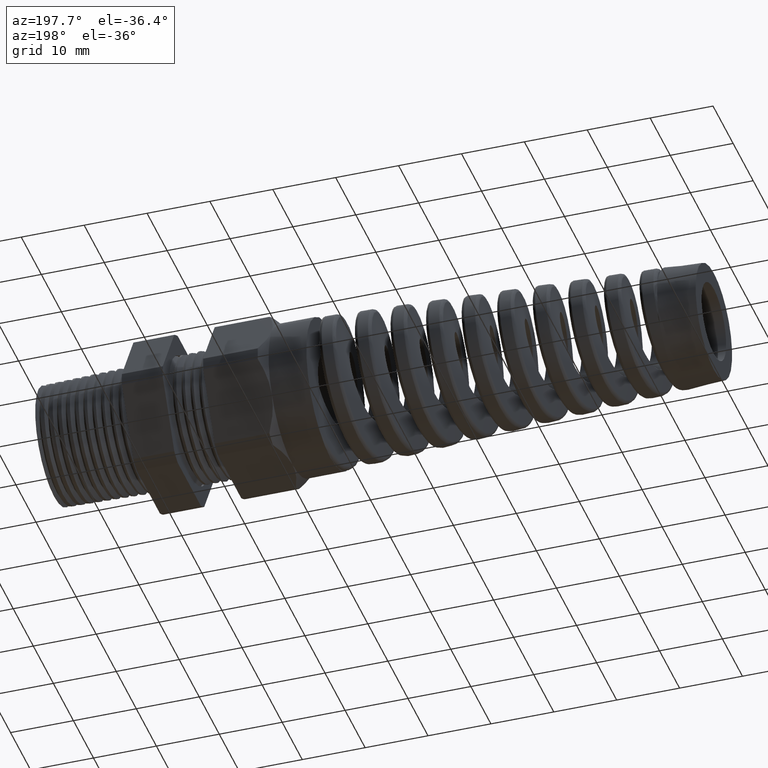
[diagram: clean part render]
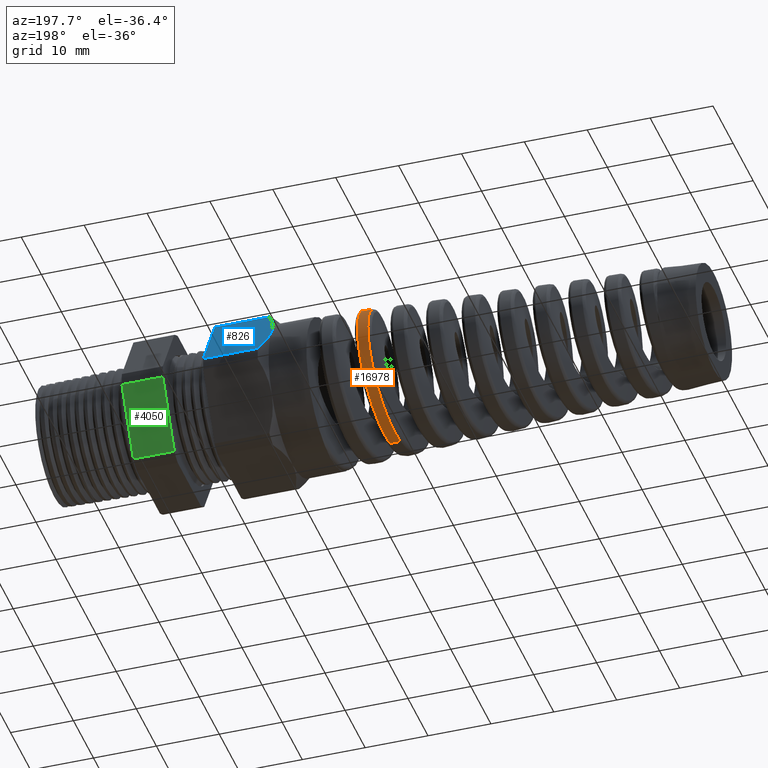
[diagram: same view with three faces highlighted in distinct colors, each labeled with its STEP entity id]
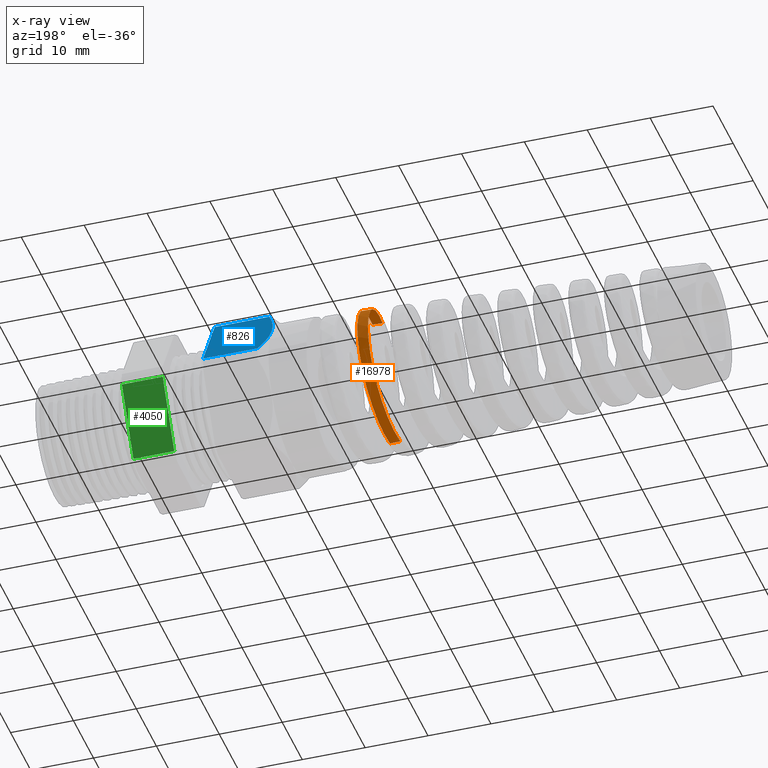
[diagram: x-ray of the same camera — body ghosted, the three highlighted faces saturated]
A machine part, auxiliary view with three faces highlighted in distinct colors.
The next image is the same camera in x-ray (body ghosted, the three faces saturated) — at least one of them is partly hidden behind the body in this view.
Their STEP definitions:

[orange] entity #16978 — the highlighted conical surface has half-angle 2.5 deg.
#14116 = DIRECTION ( 'NONE',  ( 0.9990482215818576900, 0.0000000000000000000, -0.04361938736533631200 ) ) ;
#14117 = VECTOR ( 'NONE', #14116, 39.37007874015748100 ) ;
#14119 = CARTESIAN_POINT ( 'NONE',  ( -1.369999999999999900, 0.0000000000000000000, -0.4699999999999999700 ) ) ;
#14120 = LINE ( 'NONE', #14119, #14117 ) ;
#14131 = CARTESIAN_POINT ( 'NONE',  ( -1.822040881429618700, 5.096541791137408800E-013, -0.4502634688835878100 ) ) ;
#14303 = CARTESIAN_POINT ( 'NONE',  ( -1.761257017529631200, 0.4468046488174056100, 0.07564320165449360500 ) ) ;
#14304 = CARTESIAN_POINT ( 'NONE',  ( -1.757809340060459700, 0.4380420694168157800, 0.1194918324233043800 ) ) ;
#14307 = CARTESIAN_POINT ( 'NONE',  ( -1.755544896219090300, 0.4294275797834336000, 0.1477263735582237100 ) ) ;
#14309 = CARTESIAN_POINT ( 'NONE',  ( -1.752128767299149700, 0.4124741950551973900, 0.1886215747762190800 ) ) ;
#14310 = CARTESIAN_POINT ( 'NONE',  ( -1.750987011449980800, 0.4061462922027455600, 0.2020088122152971800 ) ) ;
#14312 = CARTESIAN_POINT ( 'NONE',  ( -1.748687315151896000, 0.3920991509197268600, 0.2282798259128979200 ) ) ;
#14314 = CARTESIAN_POINT ( 'NONE',  ( -1.747533117465403200, 0.3843950883842104400, 0.2411159806779676100 ) ) ;
#14316 = CARTESIAN_POINT ( 'NONE',  ( -1.744108794239781300, 0.3596998520321175700, 0.2780393331708604400 ) ) ;
#14317 = CARTESIAN_POINT ( 'NONE',  ( -1.741851798874636700, 0.3409990863555979500, 0.3008319111185008300 ) ) ;
#14319 = CARTESIAN_POINT ( 'NONE',  ( -1.738430761906552200, 0.3095927995241541900, 0.3322794945339343500 ) ) ;
#14321 = CARTESIAN_POINT ( 'NONE',  ( -1.737278185216293300, 0.2984955114457807400, 0.3423529360480159200 ) ) ;
#14323 = CARTESIAN_POINT ( 'NONE',  ( -1.734985187286576200, 0.2754928615395048100, 0.3612474127370969300 ) ) ;
#14324 = CARTESIAN_POINT ( 'NONE',  ( -1.733845986557382500, 0.2636068129160392100, 0.3700658774771743400 ) ) ;
#14326 = CARTESIAN_POINT ( 'NONE',  ( -1.730435069461946100, 0.2268259046410669700, 0.3946841146902044800 ) ) ;
#14328 = CARTESIAN_POINT ( 'NONE',  ( -1.728172464612168600, 0.2008187379429952900, 0.4086642074342938200 ) ) ;
#14329 = CARTESIAN_POINT ( 'NONE',  ( -1.724733432000420400, 0.1595093044055275200, 0.4258643213729566000 ) ) ;
#14331 = CARTESIAN_POINT ( 'NONE',  ( -1.723587548133073100, 0.1454558669659717400, 0.4309154502506916700 ) ) ;
#14333 = CARTESIAN_POINT ( 'NONE',  ( -1.721313834762431700, 0.1171556922323973300, 0.4395569805197753200 ) ) ;
#14334 = CARTESIAN_POINT ( 'NONE',  ( -1.719049091902859600, 0.08855293848782874700, 0.4467841778985683900 ) ) ;
#14336 = CARTESIAN_POINT ( 'NONE',  ( -1.716779821678874100, 0.05935345605739934800, 0.4512138873614337000 ) ) ;
#14338 = CARTESIAN_POINT ( 'NONE',  ( -1.714498253804540800, 0.02985122258853168500, 0.4542205866170148100 ) ) ;
#14340 = CARTESIAN_POINT ( 'NONE',  ( -1.713345062118319900, 0.01486718116825785900, 0.4550092308449323300 ) ) ;
#14341 = CARTESIAN_POINT ( 'NONE',  ( -1.712202162727100900, -3.123575576925645000E-016, 0.4550591309100025500 ) ) ;
#14344 = B_SPLINE_CURVE_WITH_KNOTS ( 'NONE', 3,
 ( #14341, #14340, #14338, #14336, #14334, #14333, #14331, #14329, #14328, #14326, #14324, #14323, #14321, #14319, #14317, #14316, #14314, #14312, #14310, #14309, #14307, #14304, #14303, #14453, #14451, #14450, #14448, #14446, #14444, #14443, #14441, #14439, #14437, #14436, #14434, #14432, #14430, #14429, #14427, #14425, #14423, #14422, #14420, #14418, #14416, #14415, #14413, #14411, #14409, #14408, #14406 ),
 .UNSPECIFIED., .F., .F.,
 ( 4, 2, 1, 2, 2, 2, 2, 2, 2, 2, 2, 2, 2, 2, 2, 2, 2, 2, 2, 2, 2, 2, 2, 2, 2, 4 ),
 ( 0.08905529058756787900, 0.09019516613580699800, 0.09133504168404613100, 0.09247491723228525000, 0.09361479278052438300, 0.09589454387700263600, 0.09703441942524175500, 0.09817429497348087500, 0.1004540460699591300, 0.1015939216181982500, 0.1027337971664373800, 0.1050135482629156500, 0.1061534238111547700, 0.1072932993593939000, 0.1084331749076330300, 0.1095730504558721500, 0.1118528015523504200, 0.1129926771005895500, 0.1141325526488286700, 0.1164123037453069400, 0.1175521792935460600, 0.1186920548417851900, 0.1209718059382634500, 0.1232515570347416900, 0.1243914325829808300, 0.1255313081312199600 ),
 .UNSPECIFIED. ) ;
#14406 = CARTESIAN_POINT ( 'NONE',  ( -1.822040881429618700, 5.096541791137408800E-013, -0.4502634688835878100 ) ) ;
#14408 = CARTESIAN_POINT ( 'NONE',  ( -1.820888725403704300, 0.01482660269356085900, -0.4503137731020401800 ) ) ;
#14409 = CARTESIAN_POINT ( 'NONE',  ( -1.819723694093071400, 0.02981613453249858800, -0.4496224490667018500 ) ) ;
#14411 = CARTESIAN_POINT ( 'NONE',  ( -1.817413255509757300, 0.05941472726539403400, -0.4467774735191904500 ) ) ;
#14413 = CARTESIAN_POINT ( 'NONE',  ( -1.816266353222032200, 0.07404810415716121800, -0.4446332183724990300 ) ) ;
#14415 = CARTESIAN_POINT ( 'NONE',  ( -1.812834842442627000, 0.1174612847230464800, -0.4360874402533395600 ) ) ;
#14416 = CARTESIAN_POINT ( 'NONE',  ( -1.810558030640458900, 0.1457588041742681800, -0.4275936056121821800 ) ) ;
#14418 = CARTESIAN_POINT ( 'NONE',  ( -1.805925301917044300, 0.2010067982122463200, -0.4047969618383501200 ) ) ;
#14420 = CARTESIAN_POINT ( 'NONE',  ( -1.803638982228812100, 0.2271129035747718500, -0.3908333749850261800 ) ) ;
#14422 = CARTESIAN_POINT ( 'NONE',  ( -1.800207463913810100, 0.2639110067806945700, -0.3662853167088415100 ) ) ;
#14423 = CARTESIAN_POINT ( 'NONE',  ( -1.799062991647800000, 0.2757908807476774900, -0.3574934355952843500 ) ) ;
#14425 = CARTESIAN_POINT ( 'NONE',  ( -1.796763152266821500, 0.2987612584358542200, -0.3386657838725126200 ) ) ;
#14427 = CARTESIAN_POINT ( 'NONE',  ( -1.795602937065781800, 0.3098877725287075300, -0.3285846483813437100 ) ) ;
#14429 = CARTESIAN_POINT ( 'NONE',  ( -1.792158402279606900, 0.3413665899180348100, -0.2970923128867416500 ) ) ;
#14430 = CARTESIAN_POINT ( 'NONE',  ( -1.789888290174476800, 0.3600613127164527500, -0.2742876985444238100 ) ) ;
#14432 = CARTESIAN_POINT ( 'NONE',  ( -1.786453181611919800, 0.3847043150189813400, -0.2374027528945953900 ) ) ;
#14434 = CARTESIAN_POINT ( 'NONE',  ( -1.785300397845111000, 0.3923658138245882400, -0.2246248804979578100 ) ) ;
#14436 = CARTESIAN_POINT ( 'NONE',  ( -1.782987537946890700, 0.4064278728574680100, -0.1982799128091515800 ) ) ;
#14437 = CARTESIAN_POINT ( 'NONE',  ( -1.781840745804035700, 0.4127518020378896400, -0.1848646211026617200 ) ) ;
#14439 = CARTESIAN_POINT ( 'NONE',  ( -1.778415126010419700, 0.4296708817530234800, -0.1439149616349511600 ) ) ;
#14441 = CARTESIAN_POINT ( 'NONE',  ( -1.776149242625625100, 0.4382325317524674000, -0.1156835323093201300 ) ) ;
#14443 = CARTESIAN_POINT ( 'NONE',  ( -1.772702656988917500, 0.4469127987053060400, -0.07191572469992192600 ) ) ;
#14444 = CARTESIAN_POINT ( 'NONE',  ( -1.771545000956759900, 0.4490985224472414700, -0.05707590644910308400 ) ) ;
#14446 = CARTESIAN_POINT ( 'NONE',  ( -1.769253396093740000, 0.4519707447381270900, -0.02757063722723878900 ) ) ;
#14448 = CARTESIAN_POINT ( 'NONE',  ( -1.768113006146149400, 0.4526763912958216000, -0.01282363951911586600 ) ) ;
#14450 = CARTESIAN_POINT ( 'NONE',  ( -1.765833373785036900, 0.4526510390288336900, 0.01665853217129863900 ) ) ;
#14451 = CARTESIAN_POINT ( 'NONE',  ( -1.764694205077702600, 0.4519200225044957000, 0.03139371172882200100 ) ) ;
#14453 = CARTESIAN_POINT ( 'NONE',  ( -1.762408945642773400, 0.4490041543076420100, 0.06085147811858860500 ) ) ;
#14483 = DIRECTION ( 'NONE',  ( 0.0000000000000000000, 0.0000000000000000000, -1.000000000000000000 ) ) ;
#14485 = DIRECTION ( 'NONE',  ( 1.000000000000000000, 0.0000000000000000000, 0.0000000000000000000 ) ) ;
#14486 = AXIS2_PLACEMENT_3D ( 'NONE', #14492, #14485, #14483 ) ;
#14487 = CONICAL_SURFACE ( 'NONE', #14486, 0.4699999999999999700, 0.04363323129985854900 ) ;
#14492 = CARTESIAN_POINT ( 'NONE',  ( -1.369999999999999900, 0.0000000000000000000, 0.0000000000000000000 ) ) ;
#14494 = FACE_OUTER_BOUND ( 'NONE', #16935, .T. ) ;
#14520 = CARTESIAN_POINT ( 'NONE',  ( -1.792820941406120500, 0.1988492649791344900, 0.4056677219928064300 ) ) ;
#14522 = CARTESIAN_POINT ( 'NONE',  ( -1.795123748930672400, 0.2249751896484063200, 0.3916665763240070300 ) ) ;
#14524 = CARTESIAN_POINT ( 'NONE',  ( -1.796277561251411700, 0.2377074905555336100, 0.3840090508662502000 ) ) ;
#14525 = CARTESIAN_POINT ( 'NONE',  ( -1.799710113977904800, 0.2743710448449361300, 0.3594471000227311100 ) ) ;
#14527 = CARTESIAN_POINT ( 'NONE',  ( -1.801978560725075600, 0.2970170370024053900, 0.3408460617272124300 ) ) ;
#14529 = CARTESIAN_POINT ( 'NONE',  ( -1.805412118669837800, 0.3282728183314786400, 0.3095893740890358600 ) ) ;
#14531 = CARTESIAN_POINT ( 'NONE',  ( -1.806568844695134500, 0.3382864687117815800, 0.2985411728689125700 ) ) ;
#14532 = CARTESIAN_POINT ( 'NONE',  ( -1.808866668307090900, 0.3570379957348783200, 0.2756772849512071900 ) ) ;
#14534 = CARTESIAN_POINT ( 'NONE',  ( -1.810008619419166900, 0.3657909476262681300, 0.2638607620761887500 ) ) ;
#14536 = CARTESIAN_POINT ( 'NONE',  ( -1.813431109076586200, 0.3902261942890463700, 0.2272866995524978600 ) ) ;
#14538 = CARTESIAN_POINT ( 'NONE',  ( -1.815708743723587300, 0.4041024054702431200, 0.2014155119944505400 ) ) ;
#14539 = CARTESIAN_POINT ( 'NONE',  ( -1.819176657457186800, 0.4211589840344792700, 0.1602969573176711800 ) ) ;
#14541 = CARTESIAN_POINT ( 'NONE',  ( -1.820328692264962200, 0.4261506043476230300, 0.1463430287951748800 ) ) ;
#14543 = CARTESIAN_POINT ( 'NONE',  ( -1.822616448596078700, 0.4346919190309779200, 0.1182099850386352200 ) ) ;
#14545 = CARTESIAN_POINT ( 'NONE',  ( -1.823755601207184300, 0.4382585041826371800, 0.1039904201452412400 ) ) ;
#14546 = CARTESIAN_POINT ( 'NONE',  ( -1.826036772781427100, 0.4439960151253966600, 0.07524889754895963700 ) ) ;
#14547 = CARTESIAN_POINT ( 'NONE',  ( -1.827178774543248600, 0.4461669766969741400, 0.06072694622732851400 ) ) ;
#14548 = CARTESIAN_POINT ( 'NONE',  ( -1.829477377452833200, 0.4490857182916444000, 0.03137562240415629100 ) ) ;
#14549 = CARTESIAN_POINT ( 'NONE',  ( -1.830639824345830400, 0.4498288975311160500, 0.01647120109646450400 ) ) ;
#14550 = CARTESIAN_POINT ( 'NONE',  ( -1.834097027433388500, 0.4498456820445435600, -0.02783339042555219000 ) ) ;
#14551 = CARTESIAN_POINT ( 'NONE',  ( -1.836375001192944300, 0.4469753592167554100, -0.05700868907232146300 ) ) ;
#14552 = CARTESIAN_POINT ( 'NONE',  ( -1.840954720582554700, 0.4355620675289818000, -0.1146423709829998100 ) ) ;
#14553 = CARTESIAN_POINT ( 'NONE',  ( -1.843278971106104400, 0.4268766112418419000, -0.1433266641084317800 ) ) ;
#14554 = CARTESIAN_POINT ( 'NONE',  ( -1.847865248548406600, 0.4043941294649920900, -0.1976149052713792000 ) ) ;
#14556 = CARTESIAN_POINT ( 'NONE',  ( -1.850146549094456600, 0.3905934319534072300, -0.2234782159987053200 ) ) ;
#14557 = CARTESIAN_POINT ( 'NONE',  ( -1.853609845877750600, 0.3659932704884068000, -0.2603167648319740200 ) ) ;
#14558 = CARTESIAN_POINT ( 'NONE',  ( -1.854774442103824100, 0.3571010227573938000, -0.2723024884610597000 ) ) ;
#14559 = CARTESIAN_POINT ( 'NONE',  ( -1.857078012342326900, 0.3383744947954029900, -0.2950969554316275600 ) ) ;
#14560 = CARTESIAN_POINT ( 'NONE',  ( -1.859367802053903500, 0.3186331085548613200, -0.3168412661041222200 ) ) ;
#14561 = CARTESIAN_POINT ( 'NONE',  ( -1.861655404639487300, 0.2969017065881555100, -0.3365235379148861000 ) ) ;
#14562 = CARTESIAN_POINT ( 'NONE',  ( -1.863953750661532500, 0.2741662905825727500, -0.3551641187009429400 ) ) ;
#14563 = CARTESIAN_POINT ( 'NONE',  ( -1.865111706588957800, 0.2622602126448867500, -0.3639877056318873700 ) ) ;
#14564 = CARTESIAN_POINT ( 'NONE',  ( -1.868596673904356000, 0.2252163978269885700, -0.3886762126276427400 ) ) ;
#14565 = CARTESIAN_POINT ( 'NONE',  ( -1.870886266353911600, 0.1992898319177533200, -0.4024484950429665400 ) ) ;
#14566 = CARTESIAN_POINT ( 'NONE',  ( -1.874327267238889100, 0.1586217742556728600, -0.4192144358540829700 ) ) ;
#14567 = CARTESIAN_POINT ( 'NONE',  ( -1.875475889714674200, 0.1447672388968584400, -0.4241495367914016000 ) ) ;
#14569 = CARTESIAN_POINT ( 'NONE',  ( -1.877789337671541500, 0.1164463687440285000, -0.4326778800908756000 ) ) ;
#14570 = CARTESIAN_POINT ( 'NONE',  ( -1.878954340285434700, 0.1019756798815294600, -0.4362609472457341100 ) ) ;
#14571 = CARTESIAN_POINT ( 'NONE',  ( -1.882414686143368800, 0.05860567167067742800, -0.4447513418945646700 ) ) ;
#14572 = CARTESIAN_POINT ( 'NONE',  ( -1.884702352653078800, 0.02943138902145532200, -0.4475276099659683500 ) ) ;
#14573 = CARTESIAN_POINT ( 'NONE',  ( -1.887011458288743200, -4.772883062602677700E-013, -0.4474267922366084200 ) ) ;
#14574 = B_SPLINE_CURVE_WITH_KNOTS ( 'NONE', 3,
 ( #14573, #14572, #14571, #14570, #14569, #14567, #14566, #14565, #14564, #14563, #14562, #14561, #14560, #14559, #14558, #14557, #14556, #14554, #14553, #14552, #14551, #14550, #14549, #14548, #14547, #14546, #14545, #14543, #14541, #14539, #14538, #14536, #14534, #14532, #14531, #14529, #14527, #14525, #14524, #14522, #14520, #14614, #14613, #14612, #14611, #14610, #14609, #14608, #14607 ),
 .UNSPECIFIED., .F., .F.,
 ( 4, 2, 2, 2, 2, 2, 1, 2, 2, 2, 2, 2, 2, 2, 2, 2, 2, 2, 2, 2, 2, 2, 2, 2, 4 ),
 ( 0.5195365549092706400, 0.5218117847355976400, 0.5229493996487610800, 0.5240870145619245200, 0.5263622443882515200, 0.5274998593014149600, 0.5286374742145785200, 0.5297750891277419600, 0.5309127040409054000, 0.5331879338672324000, 0.5354631636935594000, 0.5377383935198862800, 0.5388760084330498400, 0.5400136233462132800, 0.5411512382593767200, 0.5422888531725402700, 0.5445640829988671600, 0.5457016979120307100, 0.5468393128251941600, 0.5491145426515211500, 0.5502521575646846000, 0.5513897724778480400, 0.5536650023041750400, 0.5548026172173385900, 0.5559402321305020300 ),
 .UNSPECIFIED. ) ;
#14607 = CARTESIAN_POINT ( 'NONE',  ( -1.776839634250644100, -4.708361543883943300E-013, 0.4522369979560625400 ) ) ;
#14608 = CARTESIAN_POINT ( 'NONE',  ( -1.777976215575911300, 0.01465189297870726600, 0.4521873737437242500 ) ) ;
#14609 = CARTESIAN_POINT ( 'NONE',  ( -1.779113741141150400, 0.02930254499337526700, 0.4514273505536940400 ) ) ;
#14610 = CARTESIAN_POINT ( 'NONE',  ( -1.781400487450781600, 0.05860056776003967600, 0.4484651504670913400 ) ) ;
#14611 = CARTESIAN_POINT ( 'NONE',  ( -1.782556004923651100, 0.07332730057045269700, 0.4462451635734186500 ) ) ;
#14612 = CARTESIAN_POINT ( 'NONE',  ( -1.786001747498244400, 0.1168489539241211600, 0.4374688909823396000 ) ) ;
#14613 = CARTESIAN_POINT ( 'NONE',  ( -1.788263754439378000, 0.1448944763171203500, 0.4288754835031409800 ) ) ;
#14614 = CARTESIAN_POINT ( 'NONE',  ( -1.791678974188714000, 0.1855396949191940000, 0.4119745503983631200 ) ) ;
#14658 = CARTESIAN_POINT ( 'NONE',  ( -1.776839634250644100, -4.708361543883943300E-013, 0.4522369979560625400 ) ) ;
#14659 = CARTESIAN_POINT ( 'NONE',  ( -1.712202162727100900, -3.123575576925645000E-016, 0.4550591309100025500 ) ) ;
#14664 = CARTESIAN_POINT ( 'NONE',  ( -1.887011458288743200, -4.772883062602677700E-013, -0.4474267922366084200 ) ) ;
#14774 = DIRECTION ( 'NONE',  ( 0.9990482215818576900, 5.341834311772761800E-018, 0.04361938736533631200 ) ) ;
#14775 = VECTOR ( 'NONE', #14774, 39.37007874015748100 ) ;
#14776 = CARTESIAN_POINT ( 'NONE',  ( -1.369999999999999900, 5.755839955992559700E-017, 0.4699999999999999700 ) ) ;
#14777 = LINE ( 'NONE', #14776, #14775 ) ;
#16935 = EDGE_LOOP ( 'NONE', ( #17017, #17211, #17231, #16944 ) ) ;
#16937 = VERTEX_POINT ( 'NONE', #14131 ) ;
#16939 = EDGE_CURVE ( 'NONE', #17215, #16937, #14120, .T. ) ;
#16944 = ORIENTED_EDGE ( 'NONE', *, *, #16939, .F. ) ;
#16960 = EDGE_CURVE ( 'NONE', #17226, #16937, #14344, .T. ) ;
#16978 = ADVANCED_FACE ( 'NONE', ( #14494 ), #14487, .T. ) ;
#17017 = ORIENTED_EDGE ( 'NONE', *, *, #17075, .T. ) ;
#17075 = EDGE_CURVE ( 'NONE', #17215, #17227, #14574, .T. ) ;
#17211 = ORIENTED_EDGE ( 'NONE', *, *, #17230, .T. ) ;
#17215 = VERTEX_POINT ( 'NONE', #14664 ) ;
#17226 = VERTEX_POINT ( 'NONE', #14659 ) ;
#17227 = VERTEX_POINT ( 'NONE', #14658 ) ;
#17230 = EDGE_CURVE ( 'NONE', #17227, #17226, #14777, .T. ) ;
#17231 = ORIENTED_EDGE ( 'NONE', *, *, #16960, .T. ) ;

[blue] entity #826 — the highlighted planar face has unit normal (0, 0.866, 0.5).
#811 = ORIENTED_EDGE ( 'NONE', *, *, #827, .T. ) ;
#813 = EDGE_LOOP ( 'NONE', ( #811, #814, #9564, #17493, #17482 ) ) ;
#814 = ORIENTED_EDGE ( 'NONE', *, *, #9571, .T. ) ;
#817 = VERTEX_POINT ( 'NONE', #4372 ) ;
#826 = ADVANCED_FACE ( 'NONE', ( #4359 ), #4358, .T. ) ;
#827 = EDGE_CURVE ( 'NONE', #817, #828, #4353, .T. ) ;
#828 = VERTEX_POINT ( 'NONE', #4412 ) ;
#863 = EDGE_CURVE ( 'NONE', #817, #17494, #4433, .T. ) ;
#864 = EDGE_CURVE ( 'NONE', #17494, #17492, #4429, .T. ) ;
#4350 = DIRECTION ( 'NONE',  ( -1.000000000000000000, 0.0000000000000000000, 0.0000000000000000000 ) ) ;
#4351 = VECTOR ( 'NONE', #4350, 39.37007874015748100 ) ;
#4352 = CARTESIAN_POINT ( 'NONE',  ( 0.2800000000000000300, 0.5202473208008776600, 0.03890520787129518600 ) ) ;
#4353 = LINE ( 'NONE', #4352, #4351 ) ;
#4354 = DIRECTION ( 'NONE',  ( 0.0000000000000000000, -0.4999999999999998900, 0.8660254037844386000 ) ) ;
#4355 = DIRECTION ( 'NONE',  ( 0.0000000000000000000, 0.8660254037844387100, 0.4999999999999999400 ) ) ;
#4356 = CARTESIAN_POINT ( 'NONE',  ( 0.2800000000000000300, 0.2938165587564947600, 0.4310947921287048800 ) ) ;
#4357 = AXIS2_PLACEMENT_3D ( 'NONE', #4356, #4355, #4354 ) ;
#4358 = PLANE ( 'NONE',  #4357 ) ;
#4359 = FACE_OUTER_BOUND ( 'NONE', #813, .T. ) ;
#4372 = CARTESIAN_POINT ( 'NONE',  ( -0.8188188976377951400, 0.5202473208008776600, 0.03890520787129518600 ) ) ;
#4412 = CARTESIAN_POINT ( 'NONE',  ( -1.160819685039369900, 0.5202473208008776600, 0.03890520787129520000 ) ) ;
#4426 = DIRECTION ( 'NONE',  ( -1.000000000000000000, 0.0000000000000000000, 0.0000000000000000000 ) ) ;
#4427 = VECTOR ( 'NONE', #4426, 39.37007874015748100 ) ;
#4428 = CARTESIAN_POINT ( 'NONE',  ( 0.2800000000000000300, 0.2938165587564947600, 0.4310947921287049400 ) ) ;
#4429 = LINE ( 'NONE', #4428, #4427 ) ;
#4430 = DIRECTION ( 'NONE',  ( 0.0000000000000000000, -0.4999999999999998900, 0.8660254037844386000 ) ) ;
#4431 = VECTOR ( 'NONE', #4430, 39.37007874015748100 ) ;
#4432 = CARTESIAN_POINT ( 'NONE',  ( -0.8188188976377951400, 0.5070319397786862100, 0.06179491924311227700 ) ) ;
#4433 = LINE ( 'NONE', #4432, #4431 ) ;
#7588 = VERTEX_POINT ( 'NONE', #11998 ) ;
#9564 = ORIENTED_EDGE ( 'NONE', *, *, #9970, .T. ) ;
#9571 = EDGE_CURVE ( 'NONE', #828, #7588, #12404, .T. ) ;
#9970 = EDGE_CURVE ( 'NONE', #7588, #17492, #12503, .T. ) ;
#11998 = CARTESIAN_POINT ( 'NONE',  ( -1.212519685039370000, 0.4070319397786864000, 0.2350000000000000400 ) ) ;
#12394 = CARTESIAN_POINT ( 'NONE',  ( -1.212519685039370000, 0.4070319397786864000, 0.2350000000000000400 ) ) ;
#12395 = CARTESIAN_POINT ( 'NONE',  ( -1.212519685039370000, 0.4119326305003308000, 0.2265117546779303000 ) ) ;
#12396 = CARTESIAN_POINT ( 'NONE',  ( -1.212209550361684800, 0.4168781440523186000, 0.2179458739363666600 ) ) ;
#12397 = CARTESIAN_POINT ( 'NONE',  ( -1.210977754654246400, 0.4267040029977489100, 0.2009269870148765700 ) ) ;
#12398 = CARTESIAN_POINT ( 'NONE',  ( -1.210060122264466900, 0.4315793332085025600, 0.1924826673861758100 ) ) ;
#12399 = CARTESIAN_POINT ( 'NONE',  ( -1.206456656993286400, 0.4460993342073096800, 0.1673332879302910600 ) ) ;
#12400 = CARTESIAN_POINT ( 'NONE',  ( -1.202919990934572500, 0.4556379823307484800, 0.1508118647449734100 ) ) ;
#12401 = CARTESIAN_POINT ( 'NONE',  ( -1.189376350521849500, 0.4838883643614173000, 0.1018807677346241200 ) ) ;
#12402 = CARTESIAN_POINT ( 'NONE',  ( -1.176453730715106200, 0.5022367785154768800, 0.07010038218147675300 ) ) ;
#12403 = CARTESIAN_POINT ( 'NONE',  ( -1.160819685039369900, 0.5202473208008776600, 0.03890520787129520000 ) ) ;
#12404 = B_SPLINE_CURVE_WITH_KNOTS ( 'NONE', 3,
 ( #12403, #12402, #12401, #12400, #12399, #12398, #12397, #12396, #12395, #12394 ),
 .UNSPECIFIED., .F., .F.,
 ( 4, 2, 2, 2, 4 ),
 ( 2.483251536669718400E-007, 0.002951677829872989100, 0.004427392582232651500, 0.005165249958412478100, 0.005903107334592306400 ),
 .UNSPECIFIED. ) ;
#12496 = CARTESIAN_POINT ( 'NONE',  ( -1.160819685039369900, 0.2938165587564947600, 0.4310947921287049400 ) ) ;
#12497 = CARTESIAN_POINT ( 'NONE',  ( -1.176473094533777800, 0.3118494083116971100, 0.3998609804938486600 ) ) ;
#12498 = CARTESIAN_POINT ( 'NONE',  ( -1.189577968099953600, 0.3304876304616240500, 0.3675786327674193700 ) ) ;
#12499 = CARTESIAN_POINT ( 'NONE',  ( -1.207574016859125800, 0.3682441305491641600, 0.3021824562998214300 ) ) ;
#12500 = CARTESIAN_POINT ( 'NONE',  ( -1.212519685039369600, 0.3874426189162283300, 0.2689296990195457800 ) ) ;
#12501 = CARTESIAN_POINT ( 'NONE',  ( -1.212519685039370000, 0.4070319397786864000, 0.2350000000000000400 ) ) ;
#12503 = B_SPLINE_CURVE_WITH_KNOTS ( 'NONE', 3,
 ( #12501, #12500, #12499, #12498, #12497, #12496 ),
 .UNSPECIFIED., .F., .F.,
 ( 4, 2, 4 ),
 ( 0.005903107334592306400, 0.008852512982428768400, 0.01180191863026523000 ),
 .UNSPECIFIED. ) ;
#15441 = CARTESIAN_POINT ( 'NONE',  ( -0.8188188976377951400, 0.2938165587564947600, 0.4310947921287049400 ) ) ;
#15442 = CARTESIAN_POINT ( 'NONE',  ( -1.160819685039369900, 0.2938165587564947600, 0.4310947921287049400 ) ) ;
#17482 = ORIENTED_EDGE ( 'NONE', *, *, #863, .F. ) ;
#17492 = VERTEX_POINT ( 'NONE', #15442 ) ;
#17493 = ORIENTED_EDGE ( 'NONE', *, *, #864, .F. ) ;
#17494 = VERTEX_POINT ( 'NONE', #15441 ) ;

[green] entity #4050 — the highlighted planar face has unit normal (0, 0.866, -0.5).
#3976 = ORIENTED_EDGE ( 'NONE', *, *, #3977, .F. ) ;
#3977 = EDGE_CURVE ( 'NONE', #7596, #3978, #16196, .T. ) ;
#3978 = VERTEX_POINT ( 'NONE', #16192 ) ;
#4029 = ORIENTED_EDGE ( 'NONE', *, *, #7629, .F. ) ;
#4030 = ORIENTED_EDGE ( 'NONE', *, *, #4031, .T. ) ;
#4031 = EDGE_CURVE ( 'NONE', #7592, #4032, #16242, .T. ) ;
#4032 = VERTEX_POINT ( 'NONE', #16234 ) ;
#4033 = ORIENTED_EDGE ( 'NONE', *, *, #4034, .F. ) ;
#4034 = EDGE_CURVE ( 'NONE', #3978, #4032, #16233, .T. ) ;
#4050 = ADVANCED_FACE ( 'NONE', ( #16293 ), #16288, .T. ) ;
#4051 = EDGE_LOOP ( 'NONE', ( #3976, #4029, #4030, #4033 ) ) ;
#7592 = VERTEX_POINT ( 'NONE', #11991 ) ;
#7596 = VERTEX_POINT ( 'NONE', #11990 ) ;
#7629 = EDGE_CURVE ( 'NONE', #7592, #7596, #12024, .T. ) ;
#11990 = CARTESIAN_POINT ( 'NONE',  ( -0.3100000000000000000, 0.5202473208008777700, -0.03890520787129524800 ) ) ;
#11991 = CARTESIAN_POINT ( 'NONE',  ( -0.3100000000000000000, 0.2938165587564950900, -0.4310947921287046600 ) ) ;
#12021 = DIRECTION ( 'NONE',  ( 0.0000000000000000000, 0.4999999999999998300, 0.8660254037844388200 ) ) ;
#12022 = VECTOR ( 'NONE', #12021, 39.37007874015748100 ) ;
#12023 = CARTESIAN_POINT ( 'NONE',  ( -0.3100000000000000000, 0.6420319397786862200, 0.1720319397786859700 ) ) ;
#12024 = LINE ( 'NONE', #12023, #12022 ) ;
#15975 = DIRECTION ( 'NONE',  ( 0.0000000000000000000, -0.4999999999999998300, -0.8660254037844388200 ) ) ;
#16192 = CARTESIAN_POINT ( 'NONE',  ( -0.5659055118110235500, 0.5202473208008777700, -0.03890520787129524800 ) ) ;
#16193 = DIRECTION ( 'NONE',  ( -1.000000000000000000, 0.0000000000000000000, 0.0000000000000000000 ) ) ;
#16194 = VECTOR ( 'NONE', #16193, 39.37007874015748100 ) ;
#16195 = CARTESIAN_POINT ( 'NONE',  ( 0.2800000000000000300, 0.5202473208008777700, -0.03890520787129524800 ) ) ;
#16196 = LINE ( 'NONE', #16195, #16194 ) ;
#16231 = VECTOR ( 'NONE', #15975, 39.37007874015748100 ) ;
#16232 = CARTESIAN_POINT ( 'NONE',  ( -0.5659055118110235500, 0.6420319397786862200, 0.1720319397786859700 ) ) ;
#16233 = LINE ( 'NONE', #16232, #16231 ) ;
#16234 = CARTESIAN_POINT ( 'NONE',  ( -0.5659055118110235500, 0.2938165587564951500, -0.4310947921287047700 ) ) ;
#16235 = DIRECTION ( 'NONE',  ( -1.000000000000000000, 0.0000000000000000000, 0.0000000000000000000 ) ) ;
#16236 = VECTOR ( 'NONE', #16235, 39.37007874015748100 ) ;
#16237 = CARTESIAN_POINT ( 'NONE',  ( 0.2800000000000000300, 0.2938165587564950900, -0.4310947921287046600 ) ) ;
#16242 = LINE ( 'NONE', #16237, #16236 ) ;
#16284 = DIRECTION ( 'NONE',  ( 0.0000000000000000000, 0.4999999999999998300, 0.8660254037844388200 ) ) ;
#16285 = DIRECTION ( 'NONE',  ( 0.0000000000000000000, 0.8660254037844388200, -0.4999999999999998300 ) ) ;
#16286 = CARTESIAN_POINT ( 'NONE',  ( 0.2800000000000000300, 0.5202473208008777700, -0.03890520787129524800 ) ) ;
#16287 = AXIS2_PLACEMENT_3D ( 'NONE', #16286, #16285, #16284 ) ;
#16288 = PLANE ( 'NONE',  #16287 ) ;
#16293 = FACE_OUTER_BOUND ( 'NONE', #4051, .T. ) ;